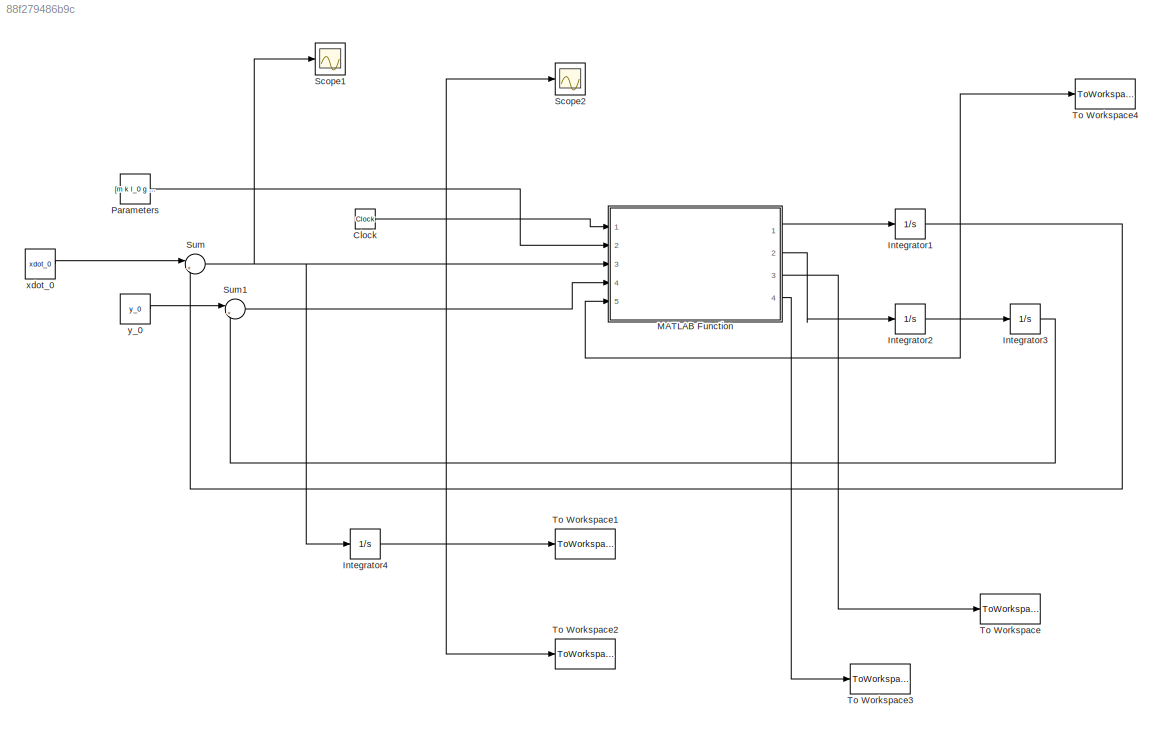
MODEL slx_88f279486b9c
KIND model
CONFIG AbsTol = auto
CONFIG FixedStep = auto
CONFIG MaxStep = 1e-3
CONFIG MinStep = auto
CONFIG RelTol = auto
CONFIG SampleTimeConstraint = Unconstrained
CONFIG Solver = VariableStepAuto
CONFIG SolverMode = Auto
CONFIG SolverName = VariableStepAuto
CONFIG StartTime = 0.0
CONFIG StopTime = 2
BLOCK [Clock] Clock
BLOCK [Integrator] Integrator1
  Ports = [1, 1]
BLOCK [Integrator] Integrator2
  Ports = [1, 1]
BLOCK [Integrator] Integrator3
  Ports = [1, 1]
BLOCK [Integrator] Integrator4
  Ports = [1, 1]
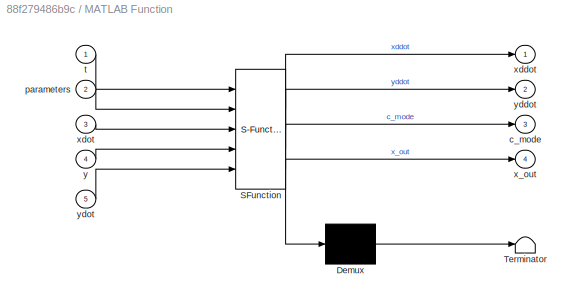
BLOCK [SubSystem] MATLAB Function
  ErrorFcn = Stateflow.Translate.translate
  PermitHierarchicalResolution = ExplicitOnly
  Ports = [5, 4]
  RequestExecContextInheritance = off
  SFBlockType = MATLAB Function
  TreatAsAtomicUnit = on
  Variant = off
BLOCK [Demux] MATLAB Function/ Demux 
  Outputs = 1
  Ports = [1, 1]
BLOCK [S-Function] MATLAB Function/ SFunction 
  EnableBusSupport = on
  FunctionName = sf_sfun
  PortCounts = [5 5]
  Ports = [5, 5]
  SFunctionDeploymentMode = off
  Tag = Stateflow S-Function spm_running 2
BLOCK [Terminator] MATLAB Function/ Terminator 
BLOCK [Outport] MATLAB Function/c_mode
  IconDisplay = Port number
  Port = 3
BLOCK [Inport] MATLAB Function/parameters
  IconDisplay = Port number
  Port = 2
BLOCK [Inport] MATLAB Function/t
  IconDisplay = Port number
BLOCK [Outport] MATLAB Function/x_out
  IconDisplay = Port number
  Port = 4
BLOCK [Outport] MATLAB Function/xddot
  IconDisplay = Port number
BLOCK [Inport] MATLAB Function/xdot
  IconDisplay = Port number
  Port = 3
BLOCK [Inport] MATLAB Function/y
  IconDisplay = Port number
  Port = 4
BLOCK [Outport] MATLAB Function/yddot
  IconDisplay = Port number
  Port = 2
BLOCK [Inport] MATLAB Function/ydot
  IconDisplay = Port number
  Port = 5
BLOCK [Constant] Parameters
  Value = [m k l_0 g alpha_0]
BLOCK [Scope] Scope1
  Ports = [1]
  ScopeSpecificationString = Simulink.scopes.TimeScopeBlockCfg('CurrentConfiguration', extmgr.ConfigurationSet(extmgr.Configuration('Core','General UI',true),extmgr.Configuration('Core','Source UI',true),extmgr.Configuration('Sources','WiredSimulink',true,'DataLoggingVariableName','ScopeData1'),extmgr.Configuration('Visuals','Time Domain',true,'SerializedDisplays',{struct('MinYLimReal','4.81085','MaxYLimReal','6.13595','YLabe...<+1360ch>
BLOCK [Scope] Scope2
  Ports = [1]
  ScopeSpecificationString = Simulink.scopes.TimeScopeBlockCfg('CurrentConfiguration', extmgr.ConfigurationSet(extmgr.Configuration('Core','General UI',true),extmgr.Configuration('Core','Source UI',true),extmgr.Configuration('Sources','WiredSimulink',true,'DataLoggingVariableName','ScopeData2'),extmgr.Configuration('Visuals','Time Domain',true,'SerializedDisplays',{struct('MinYLimReal','0.87282','MaxYLimReal','1.01413','YLabe...<+1390ch>
BLOCK [Sum] Sum
  IconShape = round
  InputSameDT = off
  Inputs = |++
  OutDataTypeStr = Inherit: Inherit via internal rule
  Ports = [2, 1]
  SaturateOnIntegerOverflow = off
BLOCK [Sum] Sum1
  IconShape = round
  InputSameDT = off
  Inputs = |++
  OutDataTypeStr = Inherit: Inherit via internal rule
  Ports = [2, 1]
  SaturateOnIntegerOverflow = off
BLOCK [ToWorkspace] To Workspace
  FixptAsFi = on
  MaxDataPoints = inf
  Ports = [1]
  SampleTime = -1
  Save2DSignal = 3-D array (concatenate along third dimension)
  SaveFormat = Timeseries
  VariableName = ForS
BLOCK [ToWorkspace] To Workspace1
  FixptAsFi = on
  MaxDataPoints = inf
  Ports = [1]
  SampleTime = -1
  Save2DSignal = 3-D array (concatenate along third dimension)
  SaveFormat = Timeseries
  VariableName = X
BLOCK [ToWorkspace] To Workspace2
  FixptAsFi = on
  MaxDataPoints = inf
  Ports = [1]
  SampleTime = -1
  Save2DSignal = 3-D array (concatenate along third dimension)
  SaveFormat = Timeseries
  VariableName = Y
BLOCK [ToWorkspace] To Workspace3
  FixptAsFi = on
  MaxDataPoints = inf
  Ports = [1]
  SampleTime = -1
  Save2DSignal = 3-D array (concatenate along third dimension)
  SaveFormat = Timeseries
  VariableName = deltaX
BLOCK [ToWorkspace] To Workspace4
  FixptAsFi = on
  MaxDataPoints = inf
  Ports = [1]
  SampleTime = -1
  Save2DSignal = 3-D array (concatenate along third dimension)
  SaveFormat = Timeseries
  VariableName = ydot
BLOCK [Constant] xdot_0
  Value = xdot_0
BLOCK [Constant] y_0
  Value = y_0
LINE Clock:1 -> MATLAB Function:1
LINE Integrator1:1 -> Sum:2
NET Integrator2:1 -> Integrator3:1, MATLAB Function:5, To Workspace4:1
LINE Integrator3:1 -> Sum1:2
LINE Integrator4:1 -> To Workspace1:1
LINE MATLAB Function:1 -> Integrator1:1
LINE MATLAB Function:2 -> Integrator2:1
LINE MATLAB Function:3 -> To Workspace:1
LINE MATLAB Function:4 -> To Workspace3:1
LINE Parameters:1 -> MATLAB Function:2
NET Sum1:1 -> MATLAB Function:4, Scope2:1, To Workspace2:1
NET Sum:1 -> Integrator4:1, MATLAB Function:3, Scope1:1
LINE xdot_0:1 -> Sum:1
LINE y_0:1 -> Sum1:1
note: NET lines group one-source signal fan-out (src -> all destinations, sorted); 1:1 wires keep LINE
CHART MATLAB Function states=1 transitions=1
  STATE_LABEL 'eML_blk_kernel()'
  STATE_LABEL 'SCRIPT:\nfunction [xddot, yddot, c_mode, x_out] = fcn(t, parameters, xdot, y, ydot)\n%#codegen\nm = parameters(1);\nk = parameters(2);\nl_0 = parameters(3);\ng = parameters(4);\nalpha_0 = parameters(5);\n\n\n\npersistent mode;\npersistent x;\npersistent time;\n\nif isempty(mode) \n    mode = 0;\nend\n\nif isempty(x) \n    x = -l_0*cos(alpha_0);\nend\n\nif isempty(time) \n    time = 0;\nend\n\nl = sqrt(x.^2+y.^2);\nif mode ==...<+387ch>'
